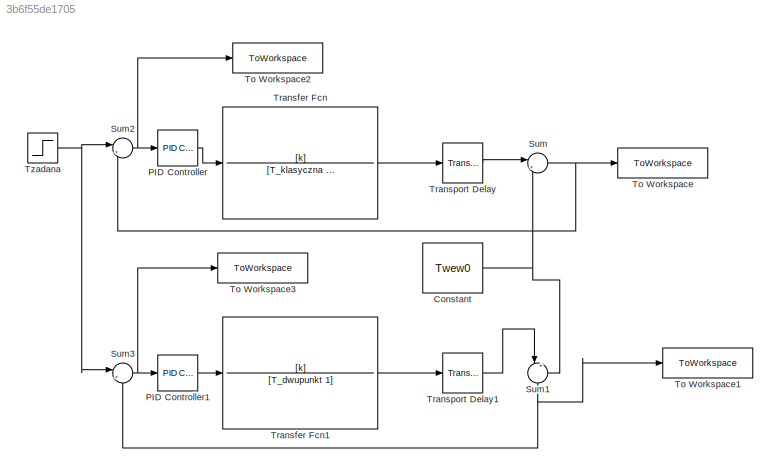
MODEL slx_3b6f55de1705
KIND model
CONFIG AbsTol = auto
CONFIG EnableMultiTasking = off
CONFIG FixedStep = auto
CONFIG MaxStep = 5
CONFIG MinStep = auto
CONFIG RelTol = 1e-3
CONFIG SampleTimeConstraint = Unconstrained
CONFIG SolverName = VariableStepAuto
CONFIG StartTime = 0.0
CONFIG StopTime = 10.0
BLOCK [Constant] Constant
  Value = Twew0
BLOCK [Reference] PID Controller  REF=slpidlib/PID Controller
  Ports = [1, 1]
  SourceBlock = slpidlib/PID Controller
  SourceProductBaseCode = SL
  SourceType = PID 1dof
BLOCK [Reference] PID Controller1  REF=slpidlib/PID Controller
  Commented = on
  Ports = [1, 1]
  SourceBlock = slpidlib/PID Controller
  SourceProductBaseCode = SL
  SourceType = PID 1dof
BLOCK [Sum] Sum
  Inputs = |++
  Ports = [2, 1]
BLOCK [Sum] Sum1
  Commented = on
  Inputs = |++
  NameLocation = left
  Ports = [2, 1]
BLOCK [Sum] Sum2
  Inputs = |+-
  Ports = [2, 1]
BLOCK [Sum] Sum3
  Inputs = |+-
  Ports = [2, 1]
BLOCK [ToWorkspace] To Workspace
  FixptAsFi = on
  MaxDataPoints = inf
  Ports = [1]
  SampleTime = -1
  VariableName = kupfmuller
BLOCK [ToWorkspace] To Workspace1
  Commented = on
  FixptAsFi = on
  MaxDataPoints = inf
  Ports = [1]
  SampleTime = -1
  VariableName = dwupunktowa
BLOCK [ToWorkspace] To Workspace2
  FixptAsFi = on
  MaxDataPoints = inf
  Ports = [1]
  SampleTime = -1
  VariableName = uchyb_klasyczna
BLOCK [ToWorkspace] To Workspace3
  Commented = on
  FixptAsFi = on
  MaxDataPoints = inf
  Ports = [1]
  SampleTime = -1
  VariableName = uchyb_dwupunkt
BLOCK [TransferFcn] Transfer Fcn
  Denominator = [T_klasyczna 1]
  Numerator = [k]
BLOCK [TransferFcn] Transfer Fcn1
  Commented = on
  Denominator = [T_dwupunkt 1]
  Numerator = [k]
BLOCK [TransportDelay] Transport Delay
  BufferSize = 32768
  DelayTime = T0_klasyczna
  Ports = [1, 1]
BLOCK [TransportDelay] Transport Delay1
  BufferSize = 32768
  Commented = on
  DelayTime = T0_dwupunkt
  Ports = [1, 1]
BLOCK [Step] Tzadana
  After = TwewK
  Before = Twew0
  SampleTime = 0
  Time = skok_czas
NET Constant:1 -> Sum1:2, Sum:2
LINE PID Controller1:1 -> Transfer Fcn1:1
LINE PID Controller:1 -> Transfer Fcn:1
NET Sum1:1 -> Sum3:2, To Workspace1:1
NET Sum2:1 -> PID Controller:1, To Workspace2:1
NET Sum3:1 -> PID Controller1:1, To Workspace3:1
NET Sum:1 -> Sum2:2, To Workspace:1
LINE Transfer Fcn1:1 -> Transport Delay1:1
LINE Transfer Fcn:1 -> Transport Delay:1
LINE Transport Delay1:1 -> Sum1:1
LINE Transport Delay:1 -> Sum:1
NET Tzadana:1 -> Sum2:1, Sum3:1
note: NET lines group one-source signal fan-out (src -> all destinations, sorted); 1:1 wires keep LINE
